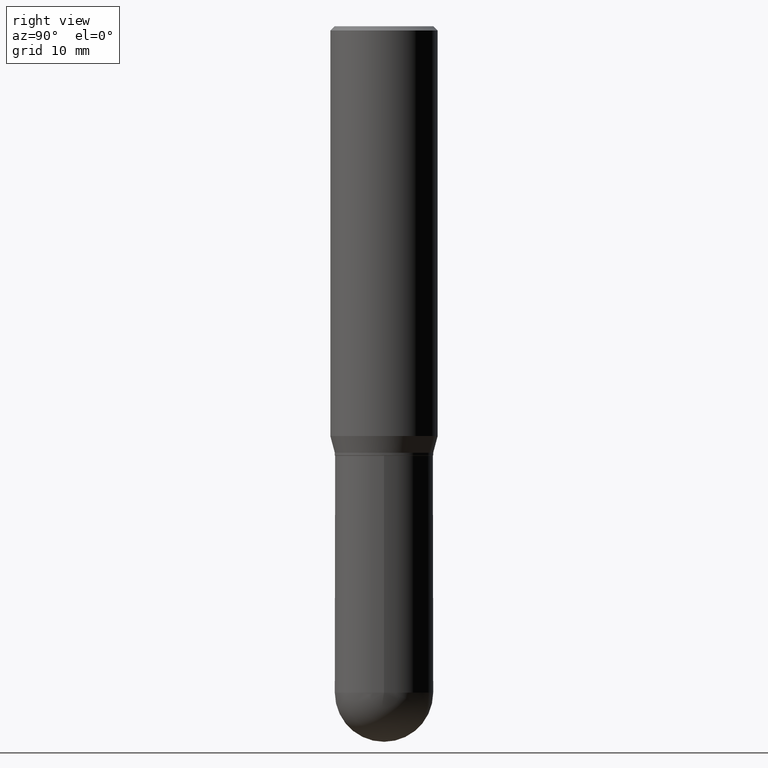
[diagram: clean part render]
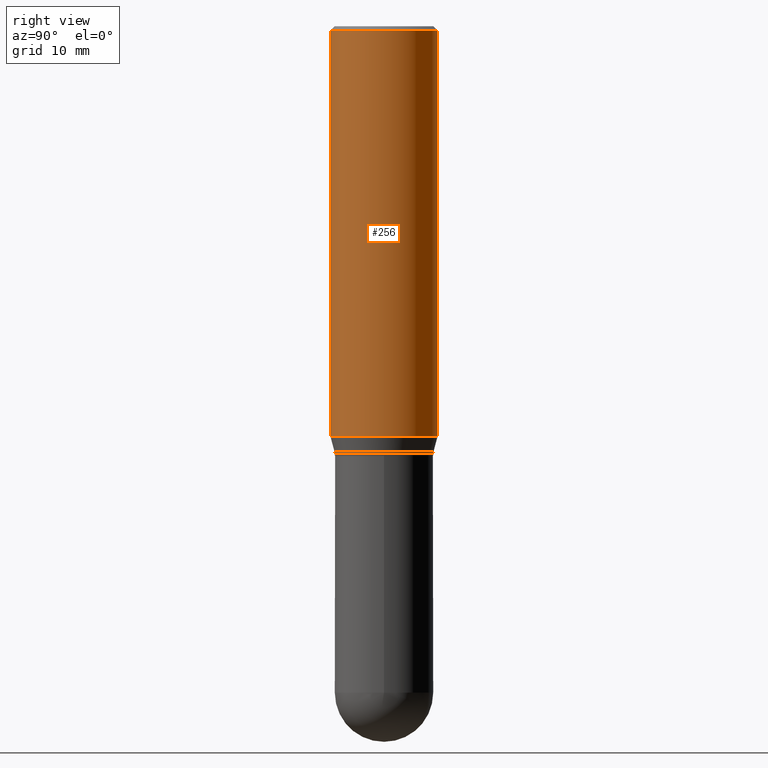
[diagram: same view with one face highlighted and labeled with its STEP entity id]
A machine part, right view. The second image highlights one B-rep face of the part: STEP entity #256.
In plain terms, the highlighted cylindrical surface (partial cylindrical patch) has radius 4.7625 mm, axis along (-0, 0, 1).
Its self-contained STEP definition (entity closure, byte-faithful):
#5 = AXIS2_PLACEMENT_3D ( 'NONE', #58, #138, #167 ) ;
#24 = DIRECTION ( 'NONE',  ( -6.982962677686265922E-15, -1.000000000000000000, 2.913971193241880372E-15 ) ) ;
#37 = EDGE_LOOP ( 'NONE', ( #441, #95, #45, #429 ) ) ;
#45 = ORIENTED_EDGE ( 'NONE', *, *, #69, .F. ) ;
#58 = CARTESIAN_POINT ( 'NONE',  ( 3.667660301732473984E-31, -5.237999482769862300E-17, -0.01499999999999999077 ) ) ;
#66 = CYLINDRICAL_SURFACE ( 'NONE', #270, 0.1875000000000000278 ) ;
#69 = EDGE_CURVE ( 'NONE', #128, #132, #220, .T. ) ;
#86 = EDGE_CURVE ( 'NONE', #432, #162, #402, .T. ) ;
#95 = ORIENTED_EDGE ( 'NONE', *, *, #184, .T. ) ;
#128 = VERTEX_POINT ( 'NONE', #211 ) ;
#132 = VERTEX_POINT ( 'NONE', #257 ) ;
#138 = DIRECTION ( 'NONE',  ( -2.445106867821650572E-29, 3.491999655179909992E-15, 1.000000000000000000 ) ) ;
#149 = CARTESIAN_POINT ( 'NONE',  ( 1.332267629550222558E-15, 0.1874999999999950318, -1.431780007401926014 ) ) ;
#158 = AXIS2_PLACEMENT_3D ( 'NONE', #337, #213, #24 ) ;
#162 = VERTEX_POINT ( 'NONE', #149 ) ;
#167 = DIRECTION ( 'NONE',  ( -6.982962677686265922E-15, -1.000000000000000000, 3.494488891895536035E-15 ) ) ;
#184 = EDGE_CURVE ( 'NONE', #162, #132, #386, .T. ) ;
#186 = CARTESIAN_POINT ( 'NONE',  ( 0.000000000000000000, 0.000000000000000000, 0.000000000000000000 ) ) ;
#188 = FACE_OUTER_BOUND ( 'NONE', #37, .T. ) ;
#190 = LINE ( 'NONE', #499, #468 ) ;
#211 = CARTESIAN_POINT ( 'NONE',  ( -1.309305502066174614E-15, -0.1875000000000000833, -0.01499999999999933678 ) ) ;
#213 = DIRECTION ( 'NONE',  ( -2.445106867821650572E-29, 3.491999655179909992E-15, 1.000000000000000000 ) ) ;
#220 = CIRCLE ( 'NONE', #5, 0.1875000000000000278 ) ;
#225 = DIRECTION ( 'NONE',  ( -2.445106867821650572E-29, 3.491999655179909992E-15, 1.000000000000000000 ) ) ;
#256 = ADVANCED_FACE ( 'NONE', ( #188 ), #66, .T. ) ;
#257 = CARTESIAN_POINT ( 'NONE',  ( 1.332267629550222953E-15, 0.1874999999999999445, -0.01500000000000064650 ) ) ;
#266 = DIRECTION ( 'NONE',  ( -2.445106867821650572E-29, 3.491999655179910386E-15, 1.000000000000000000 ) ) ;
#270 = AXIS2_PLACEMENT_3D ( 'NONE', #186, #225, #345 ) ;
#304 = DIRECTION ( 'NONE',  ( -2.445106867821650572E-29, 3.491999655179910386E-15, 1.000000000000000000 ) ) ;
#337 = CARTESIAN_POINT ( 'NONE',  ( 3.500855129308181168E-29, -4.999775292141012103E-15, -1.431780007401925348 ) ) ;
#340 = CARTESIAN_POINT ( 'NONE',  ( 1.332267629550187651E-15, 0.1875000000000000278, -6.547499353462331727E-16 ) ) ;
#345 = DIRECTION ( 'NONE',  ( -6.982962677686265922E-15, -1.000000000000000000, 3.491999655179909597E-15 ) ) ;
#374 = VECTOR ( 'NONE', #266, 39.37007874015748143 ) ;
#386 = LINE ( 'NONE', #340, #374 ) ;
#402 = CIRCLE ( 'NONE', #158, 0.1875000000000000278 ) ;
#414 = EDGE_CURVE ( 'NONE', #432, #128, #190, .T. ) ;
#425 = CARTESIAN_POINT ( 'NONE',  ( -1.309305502066140101E-15, -0.1875000000000049960, -1.431780007401924903 ) ) ;
#429 = ORIENTED_EDGE ( 'NONE', *, *, #414, .F. ) ;
#432 = VERTEX_POINT ( 'NONE', #425 ) ;
#441 = ORIENTED_EDGE ( 'NONE', *, *, #86, .T. ) ;
#468 = VECTOR ( 'NONE', #304, 39.37007874015748143 ) ;
#499 = CARTESIAN_POINT ( 'NONE',  ( -1.309305502066175008E-15, -0.1875000000000000278, 6.547499353462331727E-16 ) ) ;